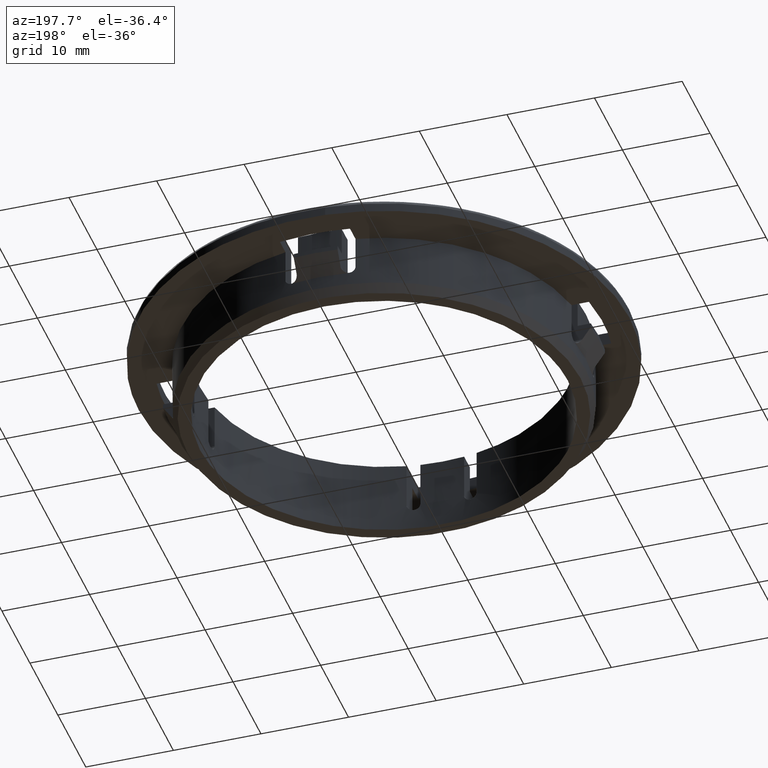
[diagram: clean part render]
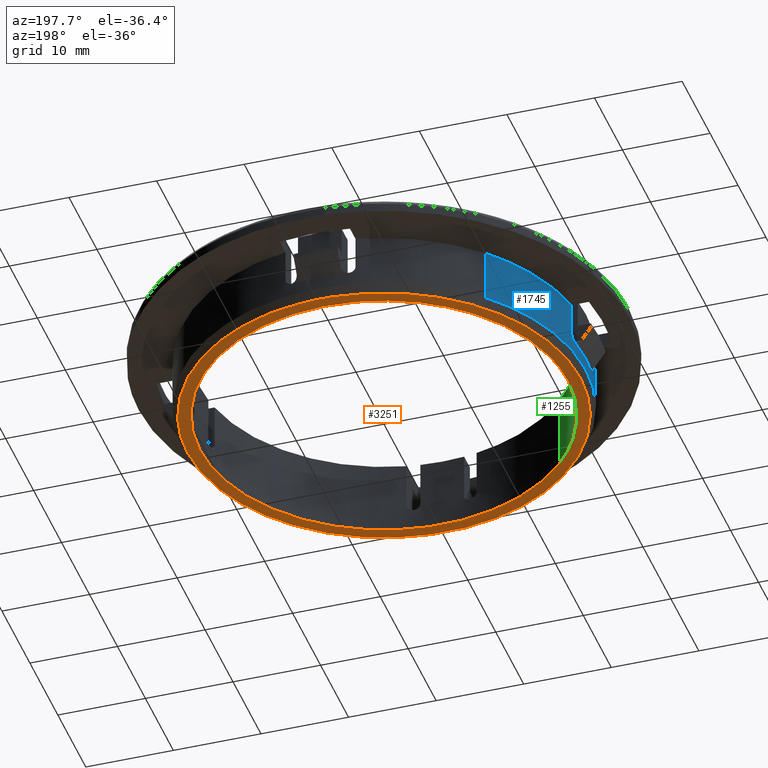
[diagram: same view with three faces highlighted in distinct colors, each labeled with its STEP entity id]
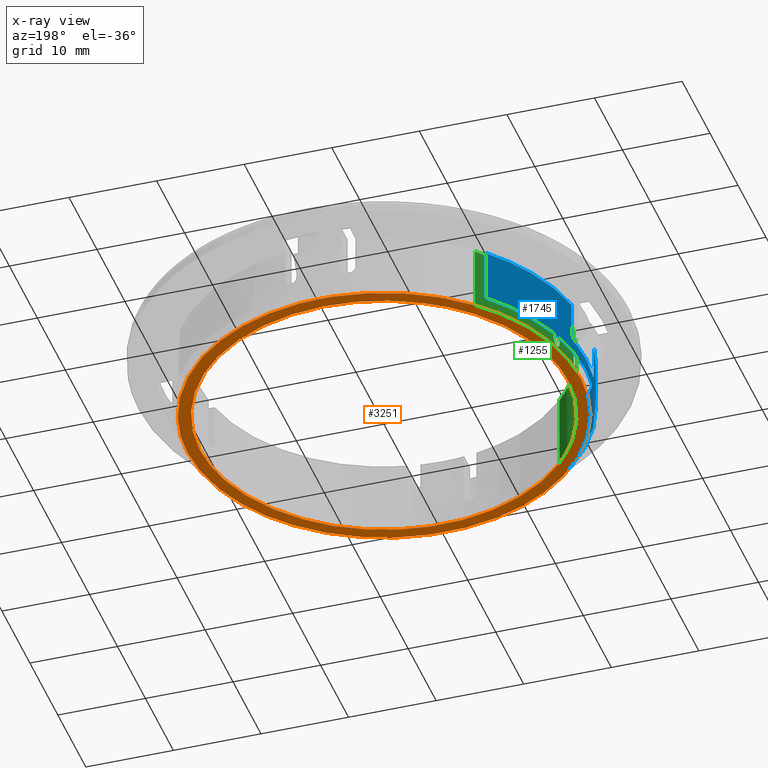
[diagram: x-ray of the same camera — body ghosted, the three highlighted faces saturated]
A machine part, auxiliary view with three faces highlighted in distinct colors.
The next image is the same camera in x-ray (body ghosted, the three faces saturated) — at least one of them is partly hidden behind the body in this view.
Their STEP definitions:

[orange] entity #3251 — the highlighted face is a freeform B-spline surface patch.
#87=CARTESIAN_POINT('',(15.541113645147281,-16.201119920197399,1.603437E-013));
#88=VERTEX_POINT('',#87);
#94=CARTESIAN_POINT('',(22.449999999999999,0.0,0.0));
#95=VERTEX_POINT('',#94);
#96=CARTESIAN_POINT('',(22.449999999999999,0.0,0.0));
#97=CARTESIAN_POINT('',(22.450000000000003,-9.573689931957800,8.484207E-014));
#98=CARTESIAN_POINT('',(15.541113645147282,-16.201119920197396,1.603437E-013));
#106=(BOUNDED_CURVE()B_SPLINE_CURVE(2,(#96,#97,#98),.UNSPECIFIED.,.F.,.U.)B_SPLINE_CURVE_WITH_KNOTS((3,3),(0.500000000000000,0.628137034910214),.UNSPECIFIED.)CURVE()GEOMETRIC_REPRESENTATION_ITEM()RATIONAL_B_SPLINE_CURVE((1.0,0.849878125583743,0.853645626070387))REPRESENTATION_ITEM(''));
#107=EDGE_CURVE('',#95,#88,#106,.T.);
#109=CARTESIAN_POINT('',(-22.449999999999999,0.0,1.989520E-013));
#110=VERTEX_POINT('',#109);
#111=CARTESIAN_POINT('',(-22.449999999999999,0.0,1.989520E-013));
#112=CARTESIAN_POINT('',(-22.450000000000010,22.450000000000010,1.989520E-013));
#113=CARTESIAN_POINT('',(0.0,22.449999999999999,1.989520E-013));
#114=CARTESIAN_POINT('',(22.450000000000010,22.450000000000010,1.989520E-013));
#115=CARTESIAN_POINT('',(22.449999999999999,0.0,0.0));
#123=(BOUNDED_CURVE()B_SPLINE_CURVE(2,(#111,#112,#113,#114,#115),.UNSPECIFIED.,.F.,.U.)B_SPLINE_CURVE_WITH_KNOTS((3,2,3),(0.0,0.250000000000000,0.500000000000000),.UNSPECIFIED.)CURVE()GEOMETRIC_REPRESENTATION_ITEM()RATIONAL_B_SPLINE_CURVE((1.0,0.707106781186548,1.0,0.707106781186548,1.0))REPRESENTATION_ITEM(''));
#124=EDGE_CURVE('',#110,#95,#123,.T.);
#126=CARTESIAN_POINT('',(1.761406699115169,-22.380794142309359,4.524621E-012));
#127=VERTEX_POINT('',#126);
#128=CARTESIAN_POINT('',(1.761406699115169,-22.380794142309362,4.524621E-012));
#129=CARTESIAN_POINT('',(0.882062902347138,-22.450000000000003,1.989520E-013));
#130=CARTESIAN_POINT('',(0.0,-22.449999999999999,1.989520E-013));
#131=CARTESIAN_POINT('',(-22.450000000000010,-22.450000000000010,1.989520E-013));
#132=CARTESIAN_POINT('',(-22.449999999999999,0.0,1.989520E-013));
#140=(BOUNDED_CURVE()B_SPLINE_CURVE(2,(#128,#129,#130,#131,#132),.UNSPECIFIED.,.F.,.U.)B_SPLINE_CURVE_WITH_KNOTS((3,2,3),(0.736331300632386,0.750000000000000,1.0),.UNSPECIFIED.)CURVE()GEOMETRIC_REPRESENTATION_ITEM()RATIONAL_B_SPLINE_CURVE((0.969723356171021,0.983986122580905,1.0,0.707106781186548,1.0))REPRESENTATION_ITEM(''));
#141=EDGE_CURVE('',#127,#110,#140,.T.);
#243=CARTESIAN_POINT('',(15.541113645147282,-16.201119920197396,1.603437E-013));
#244=CARTESIAN_POINT('',(9.754809618453267,-21.751699689200059,1.927636E-013));
#245=CARTESIAN_POINT('',(1.761406699115169,-22.380794142309359,4.524621E-012));
#253=(BOUNDED_CURVE()B_SPLINE_CURVE(2,(#243,#244,#245),.UNSPECIFIED.,.F.,.U.)B_SPLINE_CURVE_WITH_KNOTS((3,3),(0.628137034910213,0.736331300632385),.UNSPECIFIED.)CURVE()GEOMETRIC_REPRESENTATION_ITEM()RATIONAL_B_SPLINE_CURVE((0.853645626070387,0.856826766862711,0.969723356171019))REPRESENTATION_ITEM(''));
#254=EDGE_CURVE('',#88,#127,#253,.T.);
#519=CARTESIAN_POINT('',(-15.049670745855360,14.646071501988001,5.678856E-017));
#520=VERTEX_POINT('',#519);
#526=CARTESIAN_POINT('',(21.0,0.0,0.0));
#527=VERTEX_POINT('',#526);
#528=CARTESIAN_POINT('',(21.0,0.0,0.0));
#529=CARTESIAN_POINT('',(21.000000000000007,21.000000000000007,0.0));
#530=CARTESIAN_POINT('',(0.0,21.0,0.0));
#531=CARTESIAN_POINT('',(-8.866140987117786,21.0,0.0));
#532=CARTESIAN_POINT('',(-15.049670745855364,14.646071501988001,5.678856E-017));
#540=(BOUNDED_CURVE()B_SPLINE_CURVE(2,(#528,#529,#530,#531,#532),.UNSPECIFIED.,.F.,.U.)B_SPLINE_CURVE_WITH_KNOTS((3,2,3),(0.500000000000000,0.750000000000000,0.877050654642399),.UNSPECIFIED.)CURVE()GEOMETRIC_REPRESENTATION_ITEM()RATIONAL_B_SPLINE_CURVE((1.0,0.707106781186547,1.0,0.851150899237726,0.853592804033686))REPRESENTATION_ITEM(''));
#541=EDGE_CURVE('',#527,#520,#540,.T.);
#543=CARTESIAN_POINT('',(-15.482824886061930,-14.187393472641119,-9.159340E-016));
#544=VERTEX_POINT('',#543);
#545=CARTESIAN_POINT('',(-15.482824886061957,-14.187393472641146,0.0));
#546=CARTESIAN_POINT('',(-9.240221866962182,-20.999999999999996,0.0));
#547=CARTESIAN_POINT('',(0.0,-21.0,0.0));
#548=CARTESIAN_POINT('',(21.000000000000007,-21.000000000000007,0.0));
#549=CARTESIAN_POINT('',(21.0,0.0,0.0));
#557=(BOUNDED_CURVE()B_SPLINE_CURVE(2,(#545,#546,#547,#548,#549),.UNSPECIFIED.,.F.,.U.)B_SPLINE_CURVE_WITH_KNOTS((3,2,3),(0.118415200432865,0.250000000000000,0.500000000000000),.UNSPECIFIED.)CURVE()GEOMETRIC_REPRESENTATION_ITEM()RATIONAL_B_SPLINE_CURVE((0.853959781905800,0.845838818031435,1.0,0.707106781186547,1.0))REPRESENTATION_ITEM(''));
#558=EDGE_CURVE('',#544,#527,#557,.T.);
#1224=CARTESIAN_POINT('',(-21.0,0.0,0.0));
#1225=VERTEX_POINT('',#1224);
#1226=CARTESIAN_POINT('',(-21.0,0.0,0.0));
#1227=CARTESIAN_POINT('',(-21.000000000000004,-8.166452676182111,0.0));
#1228=CARTESIAN_POINT('',(-15.482824886061957,-14.187393472641146,0.0));
#1236=(BOUNDED_CURVE()B_SPLINE_CURVE(2,(#1226,#1227,#1228),.UNSPECIFIED.,.F.,.U.)B_SPLINE_CURVE_WITH_KNOTS((3,3),(0.0,0.118415200432865),.UNSPECIFIED.)CURVE()GEOMETRIC_REPRESENTATION_ITEM()RATIONAL_B_SPLINE_CURVE((1.0,0.861267963155113,0.853959781905800))REPRESENTATION_ITEM(''));
#1237=EDGE_CURVE('',#1225,#544,#1236,.T.);
#1239=CARTESIAN_POINT('',(-15.049670745855362,14.646071501987999,5.678856E-017));
#1240=CARTESIAN_POINT('',(-21.000000000000004,8.531769785069772,0.0));
#1241=CARTESIAN_POINT('',(-21.0,0.0,0.0));
#1249=(BOUNDED_CURVE()B_SPLINE_CURVE(2,(#1239,#1240,#1241),.UNSPECIFIED.,.F.,.U.)B_SPLINE_CURVE_WITH_KNOTS((3,3),(0.877050654642400,1.0),.UNSPECIFIED.)CURVE()GEOMETRIC_REPRESENTATION_ITEM()RATIONAL_B_SPLINE_CURVE((0.853592804033686,0.855955881948822,1.0))REPRESENTATION_ITEM(''));
#1250=EDGE_CURVE('',#520,#1225,#1249,.T.);
#3234=CARTESIAN_POINT('',(-24.692755755953240,-24.686213402533770,9.947598E-014));
#3235=CARTESIAN_POINT('',(24.692756157390519,-24.686213402533770,9.947598E-014));
#3236=CARTESIAN_POINT('',(-24.692755755953240,24.692444913470979,9.947598E-014));
#3237=CARTESIAN_POINT('',(24.692756157390519,24.692444913470979,9.947598E-014));
#3238=B_SPLINE_SURFACE_WITH_KNOTS('',1,1,((#3234,#3236),(#3235,#3237)),.UNSPECIFIED.,.F.,.F.,.U.,(2,2),(2,2),(0.0,49.385511913343748),(0.0,49.378658316004753),.UNSPECIFIED.);
#3239=ORIENTED_EDGE('',*,*,#124,.T.);
#3240=ORIENTED_EDGE('',*,*,#107,.T.);
#3241=ORIENTED_EDGE('',*,*,#254,.T.);
#3242=ORIENTED_EDGE('',*,*,#141,.T.);
#3243=EDGE_LOOP('',(#3239,#3240,#3241,#3242));
#3244=FACE_OUTER_BOUND('',#3243,.T.);
#3245=ORIENTED_EDGE('',*,*,#1237,.T.);
#3246=ORIENTED_EDGE('',*,*,#558,.T.);
#3247=ORIENTED_EDGE('',*,*,#541,.T.);
#3248=ORIENTED_EDGE('',*,*,#1250,.T.);
#3249=EDGE_LOOP('',(#3245,#3246,#3247,#3248));
#3250=FACE_BOUND('',#3249,.T.);
#3251=ADVANCED_FACE('',(#3244,#3250),#3238,.F.);

[blue] entity #1745 — the highlighted face is a freeform B-spline surface patch.
#150=CARTESIAN_POINT('',(-15.866572831554031,-16.719879382967790,1.0));
#151=VERTEX_POINT('',#150);
#167=CARTESIAN_POINT('',(-23.050000000000001,0.0,1.0));
#168=VERTEX_POINT('',#167);
#169=CARTESIAN_POINT('',(-15.866572831554034,-16.719879382967783,1.000000000000000));
#170=CARTESIAN_POINT('',(-23.050000000000001,-9.903061758204260,1.0));
#171=CARTESIAN_POINT('',(-23.050000000000001,0.0,1.0));
#179=(BOUNDED_CURVE()B_SPLINE_CURVE(2,(#169,#170,#171),.UNSPECIFIED.,.F.,.U.)B_SPLINE_CURVE_WITH_KNOTS((3,3),(0.871049524164514,1.0),.UNSPECIFIED.)CURVE()GEOMETRIC_REPRESENTATION_ITEM()RATIONAL_B_SPLINE_CURVE((0.853699661554165,0.848925120260073,1.0))REPRESENTATION_ITEM(''));
#180=EDGE_CURVE('',#151,#168,#179,.T.);
#182=CARTESIAN_POINT('',(-16.719879425078702,15.866572787178390,1.000000000000000));
#183=VERTEX_POINT('',#182);
#184=CARTESIAN_POINT('',(-23.050000000000001,0.0,1.0));
#185=CARTESIAN_POINT('',(-23.050000000000004,9.196017242953992,1.0));
#186=CARTESIAN_POINT('',(-16.719879425078691,15.866572787178388,1.000000000000000));
#194=(BOUNDED_CURVE()B_SPLINE_CURVE(2,(#184,#185,#186),.UNSPECIFIED.,.F.,.U.)B_SPLINE_CURVE_WITH_KNOTS((3,3),(0.0,0.121049523363442),.UNSPECIFIED.)CURVE()GEOMETRIC_REPRESENTATION_ITEM()RATIONAL_B_SPLINE_CURVE((1.0,0.858181661864989,0.853699661613486))REPRESENTATION_ITEM(''));
#195=EDGE_CURVE('',#168,#183,#194,.T.);
#1278=CARTESIAN_POINT('',(-16.719879863718550,15.866572324948390,6.999999999999999));
#1279=VERTEX_POINT('',#1278);
#1580=CARTESIAN_POINT('',(-15.866572325489550,-16.719879863205001,6.999999999999999));
#1581=VERTEX_POINT('',#1580);
#1595=CARTESIAN_POINT('',(-15.866572325489550,-16.719879863205001,6.999999999999999));
#1596=CARTESIAN_POINT('',(-15.866572831554031,-16.719879382967790,1.0));
#1597=QUASI_UNIFORM_CURVE('',1,(#1595,#1596),.UNSPECIFIED.,.F.,.U.);
#1598=EDGE_CURVE('',#1581,#151,#1597,.T.);
#1604=CARTESIAN_POINT('',(-16.719879863718550,15.866572324948390,6.999999999999999));
#1605=CARTESIAN_POINT('',(-16.719879425078702,15.866572787178390,1.000000000000000));
#1606=QUASI_UNIFORM_CURVE('',1,(#1604,#1605),.UNSPECIFIED.,.F.,.U.);
#1607=EDGE_CURVE('',#1279,#183,#1606,.T.);
#1612=CARTESIAN_POINT('',(-15.866572969741030,-16.719879251833230,7.150000000000001));
#1613=CARTESIAN_POINT('',(-32.586452221574248,-0.853306282092200,7.150000000000002));
#1614=CARTESIAN_POINT('',(-16.719879251833230,15.866572969741030,7.150000000000001));
#1615=CARTESIAN_POINT('',(-15.866572969741030,-16.719879251833230,0.846250000000000));
#1616=CARTESIAN_POINT('',(-32.586452221574248,-0.853306282092200,0.846250000000000));
#1617=CARTESIAN_POINT('',(-16.719879251833230,15.866572969741030,0.846250000000000));
#1625=(BOUNDED_SURFACE()B_SPLINE_SURFACE(2,1,((#1612,#1615),(#1613,#1616),(#1614,#1617)),.UNSPECIFIED.,.F.,.F.,.U.)B_SPLINE_SURFACE_WITH_KNOTS((3,3),(2,2),(0.0,38.190490450799359),(0.0,6.303750000000003),.UNSPECIFIED.)GEOMETRIC_REPRESENTATION_ITEM()RATIONAL_B_SPLINE_SURFACE(((1.0,1.0),(0.707106781186548,0.707106781186548),(1.0,1.0)))REPRESENTATION_ITEM('')SURFACE());
#1626=CARTESIAN_POINT('',(-22.700275328726701,4.0,7.0));
#1627=VERTEX_POINT('',#1626);
#1628=CARTESIAN_POINT('',(-22.700275328726740,4.000000000000007,7.0));
#1629=CARTESIAN_POINT('',(-21.496163225359346,10.833419068273043,7.0));
#1630=CARTESIAN_POINT('',(-16.719879863718550,15.866572324948391,7.000000000000001));
#1638=(BOUNDED_CURVE()B_SPLINE_CURVE(2,(#1628,#1629,#1630),.UNSPECIFIED.,.F.,.U.)B_SPLINE_CURVE_WITH_KNOTS((3,3),(0.0,0.479244843211862),.UNSPECIFIED.)CURVE()GEOMETRIC_REPRESENTATION_ITEM()RATIONAL_B_SPLINE_CURVE((1.0,0.913298177966743,0.909699158146508))REPRESENTATION_ITEM(''));
#1639=EDGE_CURVE('',#1627,#1279,#1638,.T.);
#1640=ORIENTED_EDGE('',*,*,#1639,.T.);
#1641=ORIENTED_EDGE('',*,*,#1607,.T.);
#1642=ORIENTED_EDGE('',*,*,#195,.F.);
#1643=ORIENTED_EDGE('',*,*,#180,.F.);
#1644=ORIENTED_EDGE('',*,*,#1598,.F.);
#1645=CARTESIAN_POINT('',(-22.700275328726701,-4.0,7.0));
#1646=VERTEX_POINT('',#1645);
#1647=CARTESIAN_POINT('',(-15.866572325489548,-16.719879863205001,6.999999999999999));
#1648=CARTESIAN_POINT('',(-21.381019910072446,-11.486865308091781,7.0));
#1649=CARTESIAN_POINT('',(-22.700275328726740,-4.000000000000019,7.0));
#1657=(BOUNDED_CURVE()B_SPLINE_CURVE(2,(#1647,#1648,#1649),.UNSPECIFIED.,.F.,.U.)B_SPLINE_CURVE_WITH_KNOTS((3,3),(0.479244843263187,1.0),.UNSPECIFIED.)CURVE()GEOMETRIC_REPRESENTATION_ITEM()RATIONAL_B_SPLINE_CURVE((0.909699158145737,0.905788405317621,1.0))REPRESENTATION_ITEM(''));
#1658=EDGE_CURVE('',#1581,#1646,#1657,.T.);
#1659=ORIENTED_EDGE('',*,*,#1658,.T.);
#1660=CARTESIAN_POINT('',(-22.700275328726701,-4.0,3.250000000000000));
#1661=VERTEX_POINT('',#1660);
#1662=CARTESIAN_POINT('',(-22.700275328726701,-4.0,3.250000000000000));
#1663=CARTESIAN_POINT('',(-22.700275328726701,-4.0,7.0));
#1664=QUASI_UNIFORM_CURVE('',1,(#1662,#1663),.UNSPECIFIED.,.F.,.U.);
#1665=EDGE_CURVE('',#1661,#1646,#1664,.T.);
#1666=ORIENTED_EDGE('',*,*,#1665,.F.);
#1667=CARTESIAN_POINT('',(-22.819728306883899,-3.250000000000000,2.500000000000000));
#1668=VERTEX_POINT('',#1667);
#1669=CARTESIAN_POINT('',(-22.700275328726701,-4.0,3.250000000000000));
#1670=CARTESIAN_POINT('',(-22.700275328726711,-4.0,3.200171103916131));
#1671=CARTESIAN_POINT('',(-22.701143198770250,-3.995083595093307,3.151195527647651));
#1672=CARTESIAN_POINT('',(-22.703677253692710,-3.980648568496127,3.078957194793051));
#1673=CARTESIAN_POINT('',(-22.704728599132441,-3.974651280681081,3.055083454657712));
#1674=CARTESIAN_POINT('',(-22.707248034507352,-3.960232349577985,3.007756428663549));
#1675=CARTESIAN_POINT('',(-22.708721217392899,-3.951781022633153,2.984272955101713));
#1676=CARTESIAN_POINT('',(-22.713658169947468,-3.923340777861827,2.916020866906222));
#1677=CARTESIAN_POINT('',(-22.717659551724029,-3.900155778261343,2.872893180148413));
#1678=CARTESIAN_POINT('',(-22.724655710041379,-3.859108123746918,2.811718907569797));
#1679=CARTESIAN_POINT('',(-22.727168389936288,-3.844290638110406,2.791821447302427));
#1680=CARTESIAN_POINT('',(-22.732457913942220,-3.812887452525761,2.753747378357781));
#1681=CARTESIAN_POINT('',(-22.735223448324511,-3.796369666217068,2.735629939340830));
#1682=CARTESIAN_POINT('',(-22.743853838035939,-3.744441766849788,2.683949803415714));
#1683=CARTESIAN_POINT('',(-22.750049425927909,-3.706679746534162,2.653033840566233));
#1684=CARTESIAN_POINT('',(-22.763254366235689,-3.624703337320296,2.598446168452183));
#1685=CARTESIAN_POINT('',(-22.770117723561619,-3.581383379489862,2.575426578504262));
#1686=CARTESIAN_POINT('',(-22.780583428118280,-3.513977189521623,2.547570569587297));
#1687=CARTESIAN_POINT('',(-22.784108914577381,-3.491051525430193,2.539372392920975));
#1688=CARTESIAN_POINT('',(-22.791227704074320,-3.444270536059459,2.525185270103970));
#1689=CARTESIAN_POINT('',(-22.794837439568209,-3.420303937032092,2.519178863643151));
#1690=CARTESIAN_POINT('',(-22.805600689807932,-3.348051500365998,2.504816961724059));
#1691=CARTESIAN_POINT('',(-22.812704925060711,-3.299314358461774,2.499999999999975));
#1692=CARTESIAN_POINT('',(-22.819728306883899,-3.250000000000000,2.499999999999975));
#1693=B_SPLINE_CURVE_WITH_KNOTS('',3,(#1669,#1670,#1671,#1672,#1673,#1674,#1675,#1676,#1677,#1678,#1679,#1680,#1681,#1682,#1683,#1684,#1685,#1686,#1687,#1688,#1689,#1690,#1691,#1692),.UNSPECIFIED.,.F.,.U.,(4,2,2,2,2,2,2,2,2,2,2,4),(0.0,0.125000000000000,0.187500000000001,0.250000000000001,0.375000000000001,0.437500000000001,0.500000000000001,0.625000000000000,0.750000000000000,0.812500000000000,0.875000000000000,1.0),.UNSPECIFIED.);
#1694=EDGE_CURVE('',#1661,#1668,#1693,.T.);
#1695=ORIENTED_EDGE('',*,*,#1694,.T.);
#1696=CARTESIAN_POINT('',(-22.819728306883899,3.250000000000000,2.500000000000000));
#1697=VERTEX_POINT('',#1696);
#1698=CARTESIAN_POINT('',(-22.819728306883938,-3.250000000000020,2.500000000000000));
#1699=CARTESIAN_POINT('',(-23.282595342720370,-1.170938E-014,2.500000000000000));
#1700=CARTESIAN_POINT('',(-22.819728306883938,3.250000000000008,2.500000000000000));
#1708=(BOUNDED_CURVE()B_SPLINE_CURVE(2,(#1698,#1699,#1700),.UNSPECIFIED.,.F.,.U.)CURVE()GEOMETRIC_REPRESENTATION_ITEM()QUASI_UNIFORM_CURVE()RATIONAL_B_SPLINE_CURVE((1.0,0.990009904853967,1.0))REPRESENTATION_ITEM(''));
#1709=EDGE_CURVE('',#1668,#1697,#1708,.T.);
#1710=ORIENTED_EDGE('',*,*,#1709,.T.);
#1711=CARTESIAN_POINT('',(-22.700275328726701,4.0,3.250000000000000));
#1712=VERTEX_POINT('',#1711);
#1713=CARTESIAN_POINT('',(-22.819728306883899,3.250000000000000,2.500000000000000));
#1714=CARTESIAN_POINT('',(-22.812703295211129,3.299325802377084,2.500000000000000));
#1715=CARTESIAN_POINT('',(-22.805634203599531,3.347816233895939,2.504818506929222));
#1716=CARTESIAN_POINT('',(-22.794979699431469,3.419353995068231,2.518966421659289));
#1717=CARTESIAN_POINT('',(-22.791419903760350,3.442998824750150,2.524844299263631));
#1718=CARTESIAN_POINT('',(-22.784288688118949,3.489878380862206,2.538974192409081));
#1719=CARTESIAN_POINT('',(-22.780703430964099,3.513200224571016,2.547273186003276));
#1720=CARTESIAN_POINT('',(-22.770162773764930,3.581101194620275,2.575263509051200));
#1721=CARTESIAN_POINT('',(-22.763356734161341,3.624056720294111,2.598107282738329));
#1722=CARTESIAN_POINT('',(-22.750257945683920,3.705396108844921,2.652089531062636));
#1723=CARTESIAN_POINT('',(-22.743923699278788,3.744017945094518,2.683575818672037));
#1724=CARTESIAN_POINT('',(-22.732398676951949,3.813369376800342,2.752501227587387));
#1725=CARTESIAN_POINT('',(-22.727142534541610,3.844511936499946,2.790126622264809));
#1726=CARTESIAN_POINT('',(-22.720106044762360,3.885804455781062,2.851427941826614));
#1727=CARTESIAN_POINT('',(-22.717897419075079,3.898689183154002,2.872760684203360));
#1728=CARTESIAN_POINT('',(-22.713875805269350,3.922051299162204,2.916152416486030));
#1729=CARTESIAN_POINT('',(-22.712049925635061,3.932604743015705,2.938309146198550));
#1730=CARTESIAN_POINT('',(-22.707131739878971,3.960938740386570,3.006139790983530));
#1731=CARTESIAN_POINT('',(-22.704589269501021,3.975452852813468,3.053292280557956));
#1732=CARTESIAN_POINT('',(-22.701143779172430,3.995080775031306,3.150851589916748));
#1733=CARTESIAN_POINT('',(-22.700275328726701,4.000000000000001,3.200160002324691));
#1734=CARTESIAN_POINT('',(-22.700275328726701,4.0,3.250000000000000));
#1735=B_SPLINE_CURVE_WITH_KNOTS('',3,(#1713,#1714,#1715,#1716,#1717,#1718,#1719,#1720,#1721,#1722,#1723,#1724,#1725,#1726,#1727,#1728,#1729,#1730,#1731,#1732,#1733,#1734),.UNSPECIFIED.,.F.,.U.,(4,2,2,2,2,2,2,2,2,2,4),(0.0,0.125000000000001,0.187500000000001,0.250000000000001,0.375000000000001,0.500000000000001,0.625000000000000,0.687500000000000,0.750000000000000,0.875000000000000,1.0),.UNSPECIFIED.);
#1736=EDGE_CURVE('',#1697,#1712,#1735,.T.);
#1737=ORIENTED_EDGE('',*,*,#1736,.T.);
#1738=CARTESIAN_POINT('',(-22.700275328726701,4.0,3.250000000000000));
#1739=CARTESIAN_POINT('',(-22.700275328726701,4.0,7.0));
#1740=QUASI_UNIFORM_CURVE('',1,(#1738,#1739),.UNSPECIFIED.,.F.,.U.);
#1741=EDGE_CURVE('',#1712,#1627,#1740,.T.);
#1742=ORIENTED_EDGE('',*,*,#1741,.T.);
#1743=EDGE_LOOP('',(#1640,#1641,#1642,#1643,#1644,#1659,#1666,#1695,#1710,#1737,#1742));
#1744=FACE_OUTER_BOUND('',#1743,.T.);
#1745=ADVANCED_FACE('',(#1744),#1625,.T.);

[green] entity #1255 — the highlighted face is a freeform B-spline surface patch.
#504=CARTESIAN_POINT('',(-15.049670724268109,14.646071524170130,8.499999999999996));
#505=VERTEX_POINT('',#504);
#519=CARTESIAN_POINT('',(-15.049670745855360,14.646071501988001,5.678856E-017));
#520=VERTEX_POINT('',#519);
#521=CARTESIAN_POINT('',(-15.049670724268109,14.646071524170130,8.499999999999996));
#522=CARTESIAN_POINT('',(-15.049670745855360,14.646071501988001,5.678856E-017));
#523=QUASI_UNIFORM_CURVE('',1,(#521,#522),.UNSPECIFIED.,.F.,.U.);
#524=EDGE_CURVE('',#505,#520,#523,.T.);
#543=CARTESIAN_POINT('',(-15.482824886061930,-14.187393472641119,-9.159340E-016));
#544=VERTEX_POINT('',#543);
#560=CARTESIAN_POINT('',(-15.482824818233230,-14.187393546663170,8.500000000000014));
#561=VERTEX_POINT('',#560);
#562=CARTESIAN_POINT('',(-15.482824818233230,-14.187393546663170,8.500000000000014));
#563=CARTESIAN_POINT('',(-15.482824886061930,-14.187393472641119,-9.159340E-016));
#564=QUASI_UNIFORM_CURVE('',1,(#562,#563),.UNSPECIFIED.,.F.,.U.);
#565=EDGE_CURVE('',#561,#544,#564,.T.);
#1039=CARTESIAN_POINT('',(-15.482824073012599,-14.187394359928859,8.712500000000002));
#1040=CARTESIAN_POINT('',(-28.880738740040293,0.433863812799134,8.712500000000004));
#1041=CARTESIAN_POINT('',(-15.049670416715772,14.646071840197630,8.712500000000004));
#1042=CARTESIAN_POINT('',(-15.482824073012599,-14.187394359928859,-0.217812499999999));
#1043=CARTESIAN_POINT('',(-28.880738740040293,0.433863812799134,-0.217812499999999));
#1044=CARTESIAN_POINT('',(-15.049670416715772,14.646071840197630,-0.217812499999999));
#1052=(BOUNDED_SURFACE()B_SPLINE_SURFACE(2,1,((#1039,#1042),(#1040,#1043),(#1041,#1044)),.UNSPECIFIED.,.F.,.F.,.U.)B_SPLINE_SURFACE_WITH_KNOTS((3,3),(2,2),(0.0,33.393014732884602),(0.0,8.930312500000003),.UNSPECIFIED.)GEOMETRIC_REPRESENTATION_ITEM()RATIONAL_B_SPLINE_SURFACE(((1.0,1.0),(0.718822509939086,0.718822509939086),(0.977505800795127,0.977505800795127)))REPRESENTATION_ITEM('')SURFACE());
#1053=CARTESIAN_POINT('',(-20.615528128088300,4.0,8.500000000000000));
#1054=VERTEX_POINT('',#1053);
#1055=CARTESIAN_POINT('',(-15.049670724268113,14.646071524170127,8.499999999999996));
#1056=CARTESIAN_POINT('',(-19.421527089663158,10.153740498155043,8.500000000000000));
#1057=CARTESIAN_POINT('',(-20.615528128088300,4.000000000000013,8.500000000000000));
#1065=(BOUNDED_CURVE()B_SPLINE_CURVE(2,(#1055,#1056,#1057),.UNSPECIFIED.,.F.,.U.)B_SPLINE_CURVE_WITH_KNOTS((3,3),(0.511106429872409,1.0),.UNSPECIFIED.)CURVE()GEOMETRIC_REPRESENTATION_ITEM()RATIONAL_B_SPLINE_CURVE((0.914466197066335,0.916324861188875,1.0))REPRESENTATION_ITEM(''));
#1066=EDGE_CURVE('',#505,#1054,#1065,.T.);
#1067=ORIENTED_EDGE('',*,*,#1066,.T.);
#1068=CARTESIAN_POINT('',(-20.615528128088300,4.0,3.250000000000000));
#1069=VERTEX_POINT('',#1068);
#1070=CARTESIAN_POINT('',(-20.615528128088300,4.0,3.250000000000000));
#1071=CARTESIAN_POINT('',(-20.615528128088300,4.0,8.500000000000000));
#1072=QUASI_UNIFORM_CURVE('',1,(#1070,#1071),.UNSPECIFIED.,.F.,.U.);
#1073=EDGE_CURVE('',#1069,#1054,#1072,.T.);
#1074=ORIENTED_EDGE('',*,*,#1073,.F.);
#1075=CARTESIAN_POINT('',(-20.850659461993050,2.500000000000000,3.250000000000000));
#1076=VERTEX_POINT('',#1075);
#1077=CARTESIAN_POINT('',(-20.615528128088300,4.0,3.250000000000000));
#1078=CARTESIAN_POINT('',(-20.615528128088300,4.0,3.200162063513977));
#1079=CARTESIAN_POINT('',(-20.616484111480730,3.995081849142764,3.151181148948616));
#1080=CARTESIAN_POINT('',(-20.619274806827509,3.980644478674329,3.078939549883674));
#1081=CARTESIAN_POINT('',(-20.620432574077050,3.974646445344674,3.055065517300162));
#1082=CARTESIAN_POINT('',(-20.623206823323500,3.960226537708694,3.007739420395218));
#1083=CARTESIAN_POINT('',(-20.624828552872149,3.951776846988230,2.984262811105808));
#1084=CARTESIAN_POINT('',(-20.630262165031802,3.923347465762536,2.916037163038044));
#1085=CARTESIAN_POINT('',(-20.634665169915959,3.900175297537888,2.872930815569456));
#1086=CARTESIAN_POINT('',(-20.642361404985881,3.859159122459990,2.811790648927156));
#1087=CARTESIAN_POINT('',(-20.645125617583091,3.844352025023573,2.791902773253657));
#1088=CARTESIAN_POINT('',(-20.650939904462259,3.812995583576841,2.753871617748709));
#1089=CARTESIAN_POINT('',(-20.653979517900300,3.796503485581310,2.735773639866411));
#1090=CARTESIAN_POINT('',(-20.663464397050330,3.744659354245488,2.684145460305894));
#1091=CARTESIAN_POINT('',(-20.670272353971949,3.706962018816784,2.653255669140982));
#1092=CARTESIAN_POINT('',(-20.684780243025649,3.625133500171176,2.598699040302559));
#1093=CARTESIAN_POINT('',(-20.692312069858520,3.581939406539733,2.575706756452591));
#1094=CARTESIAN_POINT('',(-20.703803384408090,3.514689544882447,2.547840308899154));
#1095=CARTESIAN_POINT('',(-20.707674443552861,3.491816017598999,2.539633752487612));
#1096=CARTESIAN_POINT('',(-20.715491233636449,3.445139026231636,2.525420154562908));
#1097=CARTESIAN_POINT('',(-20.719454738324131,3.421226101491644,2.519396190122053));
#1098=CARTESIAN_POINT('',(-20.731269839173461,3.349152373263414,2.504969781661828));
#1099=CARTESIAN_POINT('',(-20.739069186255939,3.300528755544270,2.500087895293003));
#1100=CARTESIAN_POINT('',(-20.754492037390179,3.202115089810596,2.499914434681560));
#1101=CARTESIAN_POINT('',(-20.761909803179279,3.153637238261668,2.504629612767778));
#1102=CARTESIAN_POINT('',(-20.772610603120420,3.082082146472485,2.518635321149667));
#1103=CARTESIAN_POINT('',(-20.776107270243870,3.058419400615709,2.524467782286897));
#1104=CARTESIAN_POINT('',(-20.782962736539119,3.011481765903472,2.538516214518131));
#1105=CARTESIAN_POINT('',(-20.786334223960630,2.988115567829381,2.546780445941960));
#1106=CARTESIAN_POINT('',(-20.796041951978900,2.920058149958401,2.574690320162080));
#1107=CARTESIAN_POINT('',(-20.802036159753520,2.876975423004871,2.597507452619498));
#1108=CARTESIAN_POINT('',(-20.813159953352550,2.795365581176921,2.651500706223564));
#1109=CARTESIAN_POINT('',(-20.818318778787731,2.756598402696246,2.683027977450950));
#1110=CARTESIAN_POINT('',(-20.827415595177570,2.687004122573564,2.752066216675259));
#1111=CARTESIAN_POINT('',(-20.831411958812051,2.655757946537257,2.789765698927459));
#1112=CARTESIAN_POINT('',(-20.836636203718751,2.614342236770094,2.851190502191341));
#1113=CARTESIAN_POINT('',(-20.838250882351741,2.601430224803190,2.872553378646160));
#1114=CARTESIAN_POINT('',(-20.841159260989649,2.578026320350120,2.915993893576672));
#1115=CARTESIAN_POINT('',(-20.842463026406211,2.567455125348463,2.938175783944953));
#1116=CARTESIAN_POINT('',(-20.845945686942880,2.539076944123716,3.006082392703612));
#1117=CARTESIAN_POINT('',(-20.847705219125441,2.524536535800877,3.053334719032461));
#1118=CARTESIAN_POINT('',(-20.850071575707759,2.504917745557118,3.150869254314588));
#1119=CARTESIAN_POINT('',(-20.850659461993050,2.500000000000000,3.200167692941399));
#1120=CARTESIAN_POINT('',(-20.850659461993050,2.500000000000000,3.250000000000000));
#1121=B_SPLINE_CURVE_WITH_KNOTS('',3,(#1077,#1078,#1079,#1080,#1081,#1082,#1083,#1084,#1085,#1086,#1087,#1088,#1089,#1090,#1091,#1092,#1093,#1094,#1095,#1096,#1097,#1098,#1099,#1100,#1101,#1102,#1103,#1104,#1105,#1106,#1107,#1108,#1109,#1110,#1111,#1112,#1113,#1114,#1115,#1116,#1117,#1118,#1119,#1120),.UNSPECIFIED.,.F.,.U.,(4,2,2,2,2,2,2,2,2,2,2,2,2,2,2,2,2,2,2,2,2,4),(0.0,0.062500000000002,0.093750000000002,0.125000000000003,0.187500000000003,0.218750000000004,0.250000000000004,0.312500000000003,0.375000000000003,0.406250000000003,0.437500000000003,0.500000000000003,0.562500000000004,0.593750000000004,0.625000000000003,0.687500000000003,0.750000000000002,0.812500000000001,0.843750000000001,0.875000000000001,0.937500000000000,1.0),.UNSPECIFIED.);
#1122=EDGE_CURVE('',#1069,#1076,#1121,.T.);
#1123=ORIENTED_EDGE('',*,*,#1122,.T.);
#1124=CARTESIAN_POINT('',(-20.850659461993050,2.500000000000000,8.500000000000000));
#1125=VERTEX_POINT('',#1124);
#1126=CARTESIAN_POINT('',(-20.850659461993050,2.500000000000000,3.250000000000000));
#1127=CARTESIAN_POINT('',(-20.850659461993050,2.500000000000000,8.500000000000000));
#1128=QUASI_UNIFORM_CURVE('',1,(#1126,#1127),.UNSPECIFIED.,.F.,.U.);
#1129=EDGE_CURVE('',#1076,#1125,#1128,.T.);
#1130=ORIENTED_EDGE('',*,*,#1129,.T.);
#1131=CARTESIAN_POINT('',(-20.850659461993050,-2.500000000000000,8.500000000000000));
#1132=VERTEX_POINT('',#1131);
#1133=CARTESIAN_POINT('',(-20.850659461993050,2.500000000000007,8.500000000000000));
#1134=CARTESIAN_POINT('',(-21.150410173062522,9.974660E-015,8.500000000000000));
#1135=CARTESIAN_POINT('',(-20.850659461993050,-2.499999999999997,8.500000000000000));
#1143=(BOUNDED_CURVE()B_SPLINE_CURVE(2,(#1133,#1134,#1135),.UNSPECIFIED.,.F.,.U.)CURVE()GEOMETRIC_REPRESENTATION_ITEM()QUASI_UNIFORM_CURVE()RATIONAL_B_SPLINE_CURVE((1.0,0.992888545809193,1.0))REPRESENTATION_ITEM(''));
#1144=EDGE_CURVE('',#1125,#1132,#1143,.T.);
#1145=ORIENTED_EDGE('',*,*,#1144,.T.);
#1146=CARTESIAN_POINT('',(-20.850659461993050,-2.500000000000000,3.250000000000000));
#1147=VERTEX_POINT('',#1146);
#1148=CARTESIAN_POINT('',(-20.850659461993050,-2.500000000000000,3.250000000000000));
#1149=CARTESIAN_POINT('',(-20.850659461993050,-2.500000000000000,8.500000000000000));
#1150=QUASI_UNIFORM_CURVE('',1,(#1148,#1149),.UNSPECIFIED.,.F.,.U.);
#1151=EDGE_CURVE('',#1147,#1132,#1150,.T.);
#1152=ORIENTED_EDGE('',*,*,#1151,.F.);
#1153=CARTESIAN_POINT('',(-20.615528128088300,-4.0,3.250000000000000));
#1154=VERTEX_POINT('',#1153);
#1155=CARTESIAN_POINT('',(-20.850659461993050,-2.500000000000000,3.250000000000000));
#1156=CARTESIAN_POINT('',(-20.850659461993050,-2.499999999999999,3.200165556424760));
#1157=CARTESIAN_POINT('',(-20.850071512803598,-2.504917564951238,3.151175503870593));
#1158=CARTESIAN_POINT('',(-20.848329232561699,-2.519363359019496,3.078904623469588));
#1159=CARTESIAN_POINT('',(-20.847603717840439,-2.525365730530077,3.055018224911059));
#1160=CARTESIAN_POINT('',(-20.845850269892079,-2.539799081480656,3.007662688714003));
#1161=CARTESIAN_POINT('',(-20.844818184366630,-2.548263416650464,2.984152377215756));
#1162=CARTESIAN_POINT('',(-20.841321453116500,-2.576758895905696,2.915809665665926));
#1163=CARTESIAN_POINT('',(-20.838444725494540,-2.599997348951731,2.872617515367780));
#1164=CARTESIAN_POINT('',(-20.833254626846649,-2.641153696963658,2.811352731915243));
#1165=CARTESIAN_POINT('',(-20.831367702981389,-2.656006818672606,2.791431802386940));
#1166=CARTESIAN_POINT('',(-20.827323577856578,-2.687535149707096,2.753264674589667));
#1167=CARTESIAN_POINT('',(-20.825178265096842,-2.704118585967289,2.735108511097546));
#1168=CARTESIAN_POINT('',(-20.818365091636569,-2.756248049699257,2.683336020470399));
#1169=CARTESIAN_POINT('',(-20.813323696927242,-2.794150863262071,2.652390322664720));
#1170=CARTESIAN_POINT('',(-20.804918872307478,-2.855832856915741,2.611453835819079));
#1171=CARTESIAN_POINT('',(-20.801989327065840,-2.877102164430931,2.598811560335450));
#1172=CARTESIAN_POINT('',(-20.795960966229408,-2.920356882128798,2.575882358512254));
#1173=CARTESIAN_POINT('',(-20.789737273192490,-2.964519675493200,2.555177930718036));
#1174=CARTESIAN_POINT('',(-20.783109390277829,-3.010469164841376,2.538857615281326));
#1175=CARTESIAN_POINT('',(-20.776268584829459,-3.057323046677287,2.524759278588532));
#1176=CARTESIAN_POINT('',(-20.772724865017182,-3.081313928907439,2.518803521596160));
#1177=CARTESIAN_POINT('',(-20.761914046260870,-3.153617053543762,2.504598463862801));
#1178=CARTESIAN_POINT('',(-20.754453990358648,-3.202361624895244,2.499898977450543));
#1179=CARTESIAN_POINT('',(-20.739031118834681,-3.300767890434398,2.500104287175075));
#1180=CARTESIAN_POINT('',(-20.731271202317881,-3.349136927133608,2.505000046789349));
#1181=CARTESIAN_POINT('',(-20.719575359761521,-3.420493804460011,2.519233191919547));
#1182=CARTESIAN_POINT('',(-20.715667617214400,-3.444078558323736,2.525134283762947));
#1183=CARTESIAN_POINT('',(-20.707839306878640,-3.490838464223567,2.539300606777162));
#1184=CARTESIAN_POINT('',(-20.703904058831132,-3.514097481025609,2.547611784895644));
#1185=CARTESIAN_POINT('',(-20.692334389197441,-3.581814492596656,2.575621857331484));
#1186=CARTESIAN_POINT('',(-20.684862712971881,-3.624658895152468,2.598460276568316));
#1187=CARTESIAN_POINT('',(-20.670480545277510,-3.705797024663652,2.652402835319589));
#1188=CARTESIAN_POINT('',(-20.663523333709129,-3.744334569236776,2.683858161590090));
#1189=CARTESIAN_POINT('',(-20.650860552683980,-3.813554295237371,2.752717581388432));
#1190=CARTESIAN_POINT('',(-20.645084210144379,-3.844643025871725,2.790302710287006));
#1191=CARTESIAN_POINT('',(-20.637349637830059,-3.885871258294543,2.851536420143883));
#1192=CARTESIAN_POINT('',(-20.634920400090820,-3.898743544876475,2.872854938948307));
#1193=CARTESIAN_POINT('',(-20.630495849027319,-3.922089005882885,2.916229192010537));
#1194=CARTESIAN_POINT('',(-20.628486973977761,-3.932634930314856,2.938376234177496));
#1195=CARTESIAN_POINT('',(-20.623075697906529,-3.960949138934472,3.006175063019145));
#1196=CARTESIAN_POINT('',(-20.620279229703559,-3.975447704499766,3.053271280303969));
#1197=CARTESIAN_POINT('',(-20.616484458301841,-3.995080542711895,3.150845847341786));
#1198=CARTESIAN_POINT('',(-20.615528128088300,-3.999999999999999,3.200158781343184));
#1199=CARTESIAN_POINT('',(-20.615528128088300,-4.0,3.250000000000000));
#1200=B_SPLINE_CURVE_WITH_KNOTS('',3,(#1155,#1156,#1157,#1158,#1159,#1160,#1161,#1162,#1163,#1164,#1165,#1166,#1167,#1168,#1169,#1170,#1171,#1172,#1173,#1174,#1175,#1176,#1177,#1178,#1179,#1180,#1181,#1182,#1183,#1184,#1185,#1186,#1187,#1188,#1189,#1190,#1191,#1192,#1193,#1194,#1195,#1196,#1197,#1198,#1199),.UNSPECIFIED.,.F.,.U.,(4,2,2,2,2,2,2,2,2,1,2,2,2,2,2,2,2,2,2,2,2,2,4),(0.0,0.062500000000000,0.093750000000001,0.125000000000001,0.187500000000002,0.218750000000002,0.250000000000002,0.312500000000000,0.343750000000000,0.374999999999999,0.406249999999999,0.437499999999999,0.499999999999998,0.562499999999997,0.593749999999997,0.624999999999997,0.687499999999997,0.749999999999997,0.812499999999998,0.843749999999999,0.874999999999999,0.937500000000000,1.0),.UNSPECIFIED.);
#1201=EDGE_CURVE('',#1147,#1154,#1200,.T.);
#1202=ORIENTED_EDGE('',*,*,#1201,.T.);
#1203=CARTESIAN_POINT('',(-20.615528128088300,-4.0,8.500000000000000));
#1204=VERTEX_POINT('',#1203);
#1205=CARTESIAN_POINT('',(-20.615528128088300,-4.0,3.250000000000000));
#1206=CARTESIAN_POINT('',(-20.615528128088300,-4.0,8.500000000000000));
#1207=QUASI_UNIFORM_CURVE('',1,(#1205,#1206),.UNSPECIFIED.,.F.,.U.);
#1208=EDGE_CURVE('',#1154,#1204,#1207,.T.);
#1209=ORIENTED_EDGE('',*,*,#1208,.T.);
#1210=CARTESIAN_POINT('',(-20.615528128088300,-4.000000000000008,8.500000000000000));
#1211=CARTESIAN_POINT('',(-19.486679555765690,-9.817952373767279,8.500000000000002));
#1212=CARTESIAN_POINT('',(-15.482824818233254,-14.187393546663193,8.500000000000000));
#1220=(BOUNDED_CURVE()B_SPLINE_CURVE(2,(#1210,#1211,#1212),.UNSPECIFIED.,.F.,.U.)B_SPLINE_CURVE_WITH_KNOTS((3,3),(0.0,0.464336450930303),.UNSPECIFIED.)CURVE()GEOMETRIC_REPRESENTATION_ITEM()RATIONAL_B_SPLINE_CURVE((1.0,0.920527862584656,0.914859345639884))REPRESENTATION_ITEM(''));
#1221=EDGE_CURVE('',#1204,#561,#1220,.T.);
#1222=ORIENTED_EDGE('',*,*,#1221,.T.);
#1223=ORIENTED_EDGE('',*,*,#565,.T.);
#1224=CARTESIAN_POINT('',(-21.0,0.0,0.0));
#1225=VERTEX_POINT('',#1224);
#1226=CARTESIAN_POINT('',(-21.0,0.0,0.0));
#1227=CARTESIAN_POINT('',(-21.000000000000004,-8.166452676182111,0.0));
#1228=CARTESIAN_POINT('',(-15.482824886061957,-14.187393472641146,0.0));
#1236=(BOUNDED_CURVE()B_SPLINE_CURVE(2,(#1226,#1227,#1228),.UNSPECIFIED.,.F.,.U.)B_SPLINE_CURVE_WITH_KNOTS((3,3),(0.0,0.118415200432865),.UNSPECIFIED.)CURVE()GEOMETRIC_REPRESENTATION_ITEM()RATIONAL_B_SPLINE_CURVE((1.0,0.861267963155113,0.853959781905800))REPRESENTATION_ITEM(''));
#1237=EDGE_CURVE('',#1225,#544,#1236,.T.);
#1238=ORIENTED_EDGE('',*,*,#1237,.F.);
#1239=CARTESIAN_POINT('',(-15.049670745855362,14.646071501987999,5.678856E-017));
#1240=CARTESIAN_POINT('',(-21.000000000000004,8.531769785069772,0.0));
#1241=CARTESIAN_POINT('',(-21.0,0.0,0.0));
#1249=(BOUNDED_CURVE()B_SPLINE_CURVE(2,(#1239,#1240,#1241),.UNSPECIFIED.,.F.,.U.)B_SPLINE_CURVE_WITH_KNOTS((3,3),(0.877050654642400,1.0),.UNSPECIFIED.)CURVE()GEOMETRIC_REPRESENTATION_ITEM()RATIONAL_B_SPLINE_CURVE((0.853592804033686,0.855955881948822,1.0))REPRESENTATION_ITEM(''));
#1250=EDGE_CURVE('',#520,#1225,#1249,.T.);
#1251=ORIENTED_EDGE('',*,*,#1250,.F.);
#1252=ORIENTED_EDGE('',*,*,#524,.F.);
#1253=EDGE_LOOP('',(#1067,#1074,#1123,#1130,#1145,#1152,#1202,#1209,#1222,#1223,#1238,#1251,#1252));
#1254=FACE_OUTER_BOUND('',#1253,.T.);
#1255=ADVANCED_FACE('',(#1254),#1052,.F.);